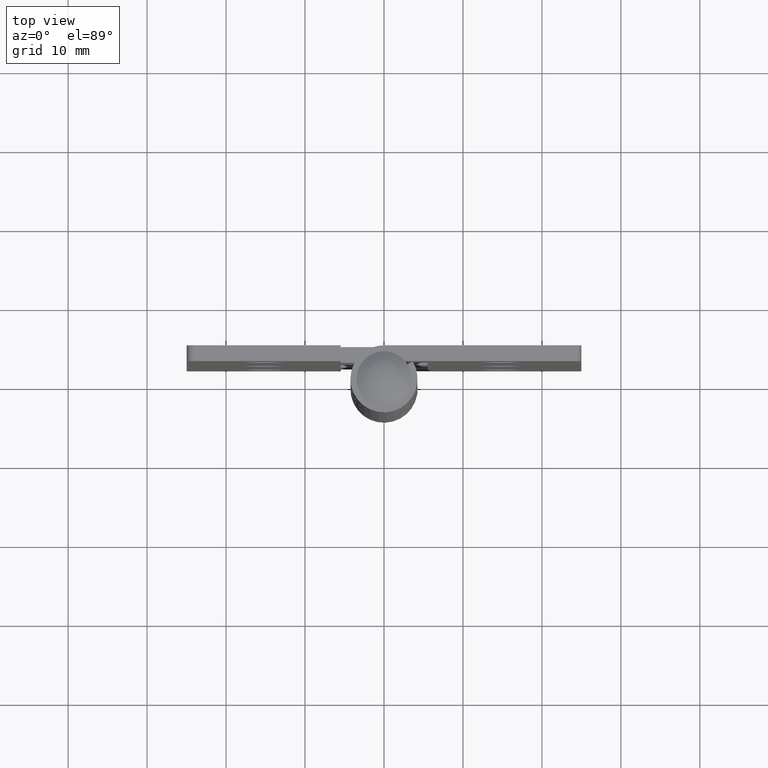
[diagram: clean part render]
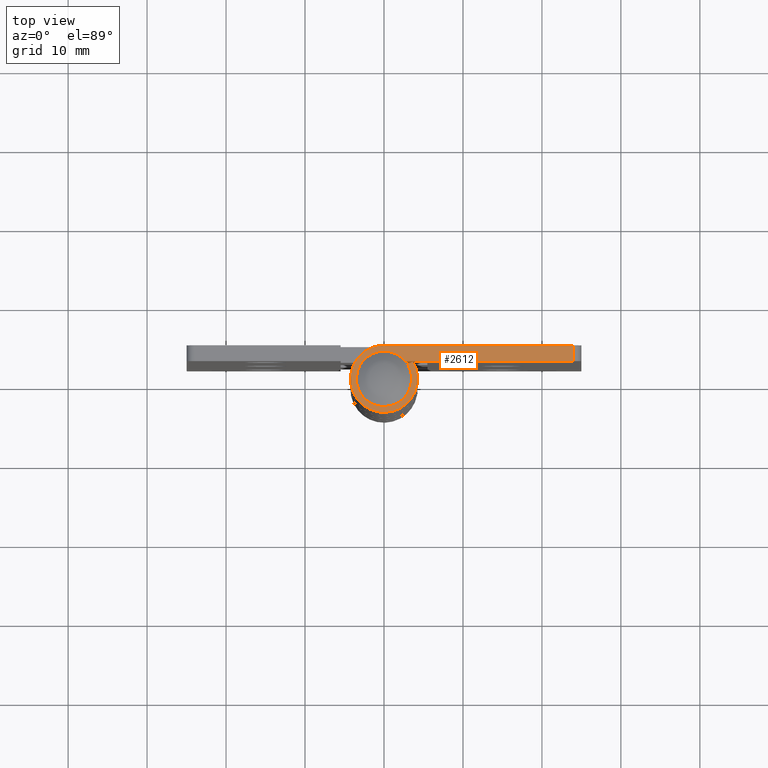
[diagram: same view with one face highlighted and labeled with its STEP entity id]
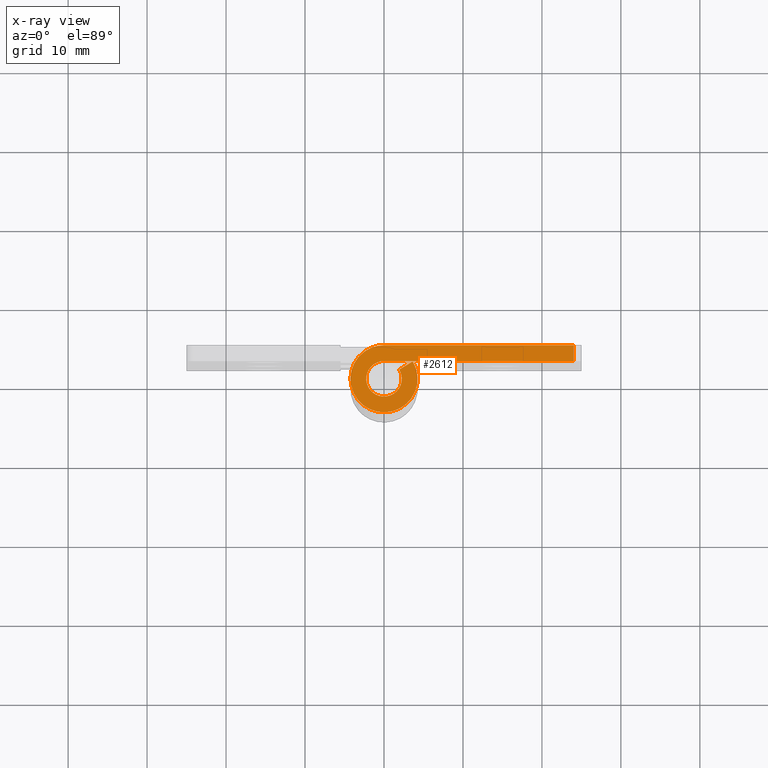
[diagram: x-ray of the same camera — body ghosted, the highlighted face saturated]
A machine part, top view. The second image highlights one B-rep face of the part: STEP entity #2612.
The next image is the same camera in x-ray: the body ghosted, the highlighted face saturated — about 0% of this face is hidden behind the body in this view.
In plain terms, the highlighted face is a freeform B-spline surface patch.
Its self-contained STEP definition (entity closure, byte-faithful):
#2013=CARTESIAN_POINT('',(24.0,4.250000000000000,74.999985000000009));
#2014=VERTEX_POINT('',#2013);
#2030=CARTESIAN_POINT('',(24.0,2.250000000000000,74.999985000000009));
#2031=VERTEX_POINT('',#2030);
#2032=CARTESIAN_POINT('',(24.0,2.250000000000000,74.999985000000009));
#2033=CARTESIAN_POINT('',(24.0,4.250000000000000,74.999985000000009));
#2034=QUASI_UNIFORM_CURVE('',1,(#2032,#2033),.UNSPECIFIED.,.F.,.U.);
#2035=EDGE_CURVE('',#2031,#2014,#2034,.T.);
#2543=CARTESIAN_POINT('',(-5.661003424963171,-4.674237608014656,74.999985000000009));
#2544=CARTESIAN_POINT('',(25.411084205812841,-4.674237608014656,74.999985000000009));
#2545=CARTESIAN_POINT('',(-5.661003424963171,4.674559161305788,74.999985000000009));
#2546=CARTESIAN_POINT('',(25.411084205812841,4.674559161305788,74.999985000000009));
#2547=B_SPLINE_SURFACE_WITH_KNOTS('',1,1,((#2543,#2545),(#2544,#2546)),.UNSPECIFIED.,.F.,.F.,.U.,(2,2),(2,2),(0.0,31.072087630776011),(0.0,9.348796769320444),.UNSPECIFIED.);
#2548=CARTESIAN_POINT('',(0.0,2.250000000000000,74.999985000000109));
#2549=VERTEX_POINT('',#2548);
#2550=CARTESIAN_POINT('',(24.0,2.250000000000000,74.999985000000009));
#2551=CARTESIAN_POINT('',(0.0,2.250000000000000,74.999985000000109));
#2552=QUASI_UNIFORM_CURVE('',1,(#2550,#2551),.UNSPECIFIED.,.F.,.U.);
#2553=EDGE_CURVE('',#2031,#2549,#2552,.T.);
#2554=ORIENTED_EDGE('',*,*,#2553,.F.);
#2555=ORIENTED_EDGE('',*,*,#2035,.T.);
#2556=CARTESIAN_POINT('',(-7.806866E-016,4.250000000000000,74.999985000000109));
#2557=VERTEX_POINT('',#2556);
#2558=CARTESIAN_POINT('',(-7.806866E-016,4.250000000000000,74.999985000000109));
#2559=CARTESIAN_POINT('',(24.0,4.250000000000000,74.999985000000009));
#2560=QUASI_UNIFORM_CURVE('',1,(#2558,#2559),.UNSPECIFIED.,.F.,.U.);
#2561=EDGE_CURVE('',#2557,#2014,#2560,.T.);
#2562=ORIENTED_EDGE('',*,*,#2561,.F.);
#2563=CARTESIAN_POINT('',(3.636275567115340,2.200000000000000,74.999985000000109));
#2564=VERTEX_POINT('',#2563);
#2565=CARTESIAN_POINT('',(3.636275567115340,2.200000000000003,74.999985000000109));
#2566=CARTESIAN_POINT('',(5.333369332345939,-0.605045724368995,74.999985000000109));
#2567=CARTESIAN_POINT('',(3.051051400271963,-2.958645864732462,74.999985000000109));
#2568=CARTESIAN_POINT('',(0.768733468197987,-5.312246005095930,74.999985000000109));
#2569=CARTESIAN_POINT('',(-2.087163146474181,-3.702195294686653,74.999985000000109));
#2570=CARTESIAN_POINT('',(-4.943059761146343,-2.092144584277380,74.999985000000109));
#2571=CARTESIAN_POINT('',(-4.110768176534545,1.078927707861306,74.999985000000109));
#2572=CARTESIAN_POINT('',(-3.278476591922745,4.250000000000001,74.999985000000109));
#2573=CARTESIAN_POINT('',(0.0,4.250000000000000,74.999985000000109));
#2581=(BOUNDED_CURVE()B_SPLINE_CURVE(2,(#2565,#2566,#2567,#2568,#2569,#2570,#2571,#2572,#2573),.UNSPECIFIED.,.F.,.U.)B_SPLINE_CURVE_WITH_KNOTS((3,2,2,2,3),(0.0,0.250000000000000,0.500000000000000,0.750000000000000,1.0),.UNSPECIFIED.)CURVE()GEOMETRIC_REPRESENTATION_ITEM()RATIONAL_B_SPLINE_CURVE((1.0,0.791790800346338,1.0,0.791790800346338,1.0,0.791790800346338,1.0,0.791790800346338,1.0))REPRESENTATION_ITEM(''));
#2582=EDGE_CURVE('',#2564,#2557,#2581,.T.);
#2583=ORIENTED_EDGE('',*,*,#2582,.F.);
#2584=CARTESIAN_POINT('',(1.925087064943415,1.164705882352942,74.999985000000109));
#2585=VERTEX_POINT('',#2584);
#2586=CARTESIAN_POINT('',(1.925087064943415,1.164705882352942,74.999985000000109));
#2587=CARTESIAN_POINT('',(3.636275567115340,2.200000000000000,74.999985000000109));
#2588=QUASI_UNIFORM_CURVE('',1,(#2586,#2587),.UNSPECIFIED.,.F.,.U.);
#2589=EDGE_CURVE('',#2585,#2564,#2588,.T.);
#2590=ORIENTED_EDGE('',*,*,#2589,.F.);
#2591=CARTESIAN_POINT('',(1.925087064943415,1.164705882352943,74.999985000000109));
#2592=CARTESIAN_POINT('',(2.823548470065497,-0.320318324665938,74.999985000000109));
#2593=CARTESIAN_POINT('',(1.615262506026333,-1.566341928387774,74.999985000000109));
#2594=CARTESIAN_POINT('',(0.406976541987169,-2.812365532109609,74.999985000000109));
#2595=CARTESIAN_POINT('',(-1.104968724603978,-1.959985744245875,74.999985000000109));
#2596=CARTESIAN_POINT('',(-2.616913991195123,-1.107605956382143,74.999985000000109));
#2597=CARTESIAN_POINT('',(-2.176289034635935,0.571197021808927,74.999985000000109));
#2598=CARTESIAN_POINT('',(-1.735664078076747,2.250000000000000,74.999985000000109));
#2599=CARTESIAN_POINT('',(0.0,2.250000000000000,74.999985000000109));
#2607=(BOUNDED_CURVE()B_SPLINE_CURVE(2,(#2591,#2592,#2593,#2594,#2595,#2596,#2597,#2598,#2599),.UNSPECIFIED.,.F.,.U.)B_SPLINE_CURVE_WITH_KNOTS((3,2,2,2,3),(0.0,0.250000000000000,0.500000000000000,0.750000000000000,1.0),.UNSPECIFIED.)CURVE()GEOMETRIC_REPRESENTATION_ITEM()RATIONAL_B_SPLINE_CURVE((1.0,0.791790800346338,1.0,0.791790800346338,1.0,0.791790800346338,1.0,0.791790800346338,1.0))REPRESENTATION_ITEM(''));
#2608=EDGE_CURVE('',#2585,#2549,#2607,.T.);
#2609=ORIENTED_EDGE('',*,*,#2608,.T.);
#2610=EDGE_LOOP('',(#2554,#2555,#2562,#2583,#2590,#2609));
#2611=FACE_OUTER_BOUND('',#2610,.T.);
#2612=ADVANCED_FACE('',(#2611),#2547,.T.);